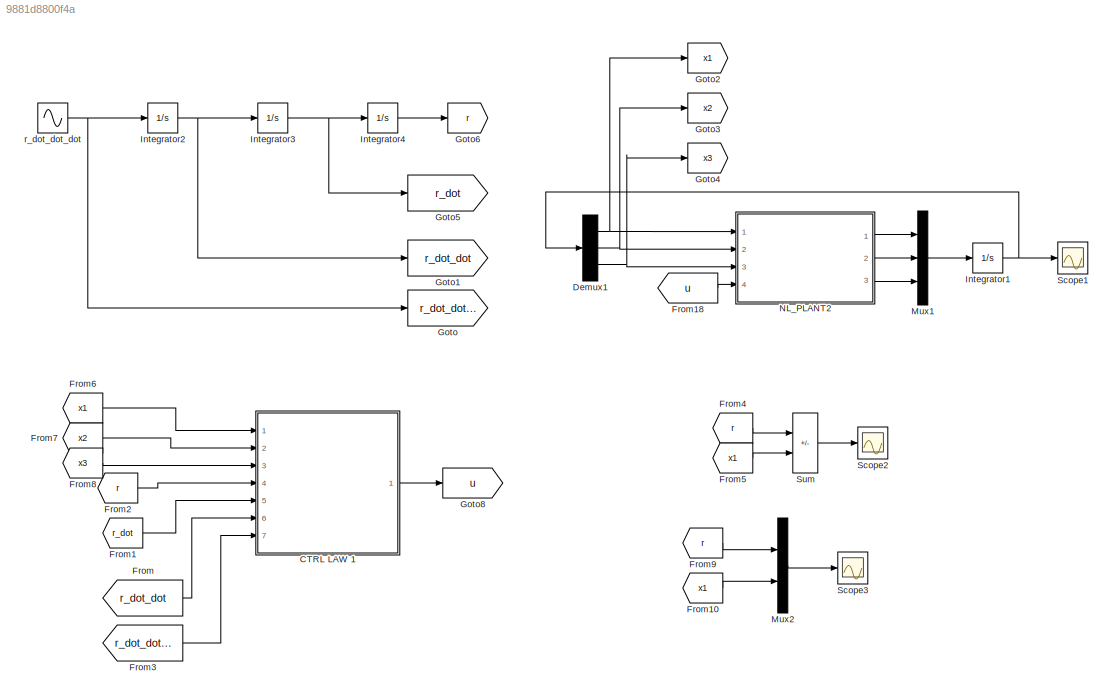
MODEL slx_9881d8800f4a
KIND model
CONFIG AbsTol = auto
CONFIG EnableMultiTasking = off
CONFIG FixedStep = 1e-5
CONFIG MaxStep = 1e-3
CONFIG MinStep = auto
CONFIG RelTol = 1e-5
CONFIG SampleTimeConstraint = Unconstrained
CONFIG SolverName = VariableStepAuto
CONFIG StartTime = 0.0
CONFIG StopTime = 10
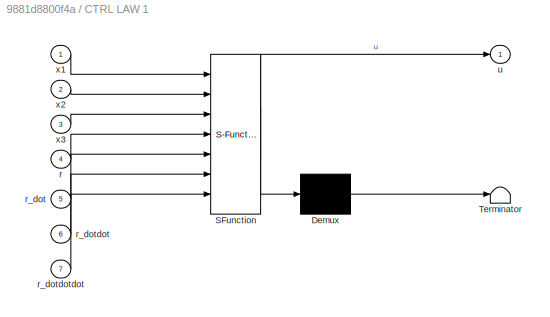
BLOCK [SubSystem] CTRL LAW 1
  ErrorFcn = Stateflow.Translate.translate
  PermitHierarchicalResolution = ExplicitOnly
  Ports = [7, 1]
  RequestExecContextInheritance = off
  SFBlockType = MATLAB Function
  TreatAsAtomicUnit = on
BLOCK [Demux] CTRL LAW 1/ Demux 
  Outputs = 1
  Ports = [1, 1]
BLOCK [S-Function] CTRL LAW 1/ SFunction 
  EnableBusSupport = on
  FunctionName = sf_sfun
  PortCounts = [7 2]
  Ports = [7, 2]
  SFcnIsStateOwnerBlock = off
  SFunctionDeploymentMode = off
  Tag = Stateflow S-Function 1
BLOCK [Terminator] CTRL LAW 1/ Terminator 
BLOCK [Inport] CTRL LAW 1/r
  Port = 4
BLOCK [Inport] CTRL LAW 1/r_dot
  Port = 5
BLOCK [Inport] CTRL LAW 1/r_dotdot
  Port = 6
BLOCK [Inport] CTRL LAW 1/r_dotdotdot
  Port = 7
BLOCK [Outport] CTRL LAW 1/u
BLOCK [Inport] CTRL LAW 1/x1
BLOCK [Inport] CTRL LAW 1/x2
  Port = 2
BLOCK [Inport] CTRL LAW 1/x3
  Port = 3
BLOCK [Demux] Demux1
  Outputs = 3
  Ports = [1, 3]
BLOCK [From] From
  GotoTag = r_dot_dot
BLOCK [From] From1
  GotoTag = r_dot
BLOCK [From] From10
  GotoTag = x1
BLOCK [From] From18
  GotoTag = u
BLOCK [From] From2
  GotoTag = r
BLOCK [From] From3
  GotoTag = r_dot_dot_dot
BLOCK [From] From4
  GotoTag = r
BLOCK [From] From5
  GotoTag = x1
BLOCK [From] From6
  GotoTag = x1
BLOCK [From] From7
  GotoTag = x2
BLOCK [From] From8
  GotoTag = x3
BLOCK [From] From9
  GotoTag = r
BLOCK [Goto] Goto
  GotoTag = r_dot_dot_dot
BLOCK [Goto] Goto1
  GotoTag = r_dot_dot
BLOCK [Goto] Goto2
  GotoTag = x1
BLOCK [Goto] Goto3
  GotoTag = x2
BLOCK [Goto] Goto4
  GotoTag = x3
BLOCK [Goto] Goto5
  GotoTag = r_dot
BLOCK [Goto] Goto6
  GotoTag = r
BLOCK [Goto] Goto8
  GotoTag = u
BLOCK [Integrator] Integrator1
  InitialCondition = ones(3,1)
  Ports = [1, 1]
BLOCK [Integrator] Integrator2
  Ports = [1, 1]
BLOCK [Integrator] Integrator3
  Ports = [1, 1]
BLOCK [Integrator] Integrator4
  Ports = [1, 1]
BLOCK [Mux] Mux1
  DisplayOption = bar
  Inputs = 3
  Ports = [3, 1]
BLOCK [Mux] Mux2
  DisplayOption = bar
  Inputs = 2
  Ports = [2, 1]
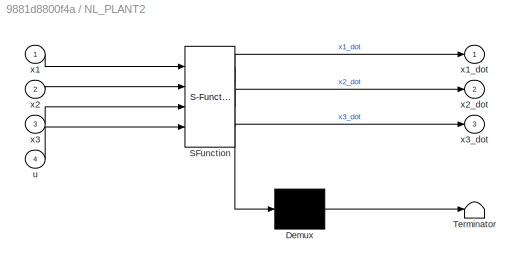
BLOCK [SubSystem] NL_PLANT2
  ErrorFcn = Stateflow.Translate.translate
  PermitHierarchicalResolution = ExplicitOnly
  Ports = [4, 3]
  RequestExecContextInheritance = off
  SFBlockType = MATLAB Function
  TreatAsAtomicUnit = on
BLOCK [Demux] NL_PLANT2/ Demux 
  Outputs = 1
  Ports = [1, 1]
BLOCK [S-Function] NL_PLANT2/ SFunction 
  EnableBusSupport = on
  FunctionName = sf_sfun
  PortCounts = [4 4]
  Ports = [4, 4]
  SFcnIsStateOwnerBlock = off
  SFunctionDeploymentMode = off
  Tag = Stateflow S-Function 3
BLOCK [Terminator] NL_PLANT2/ Terminator 
BLOCK [Inport] NL_PLANT2/u
  Port = 4
BLOCK [Inport] NL_PLANT2/x1
BLOCK [Outport] NL_PLANT2/x1_dot
BLOCK [Inport] NL_PLANT2/x2
  Port = 2
BLOCK [Outport] NL_PLANT2/x2_dot
  Port = 2
BLOCK [Inport] NL_PLANT2/x3
  Port = 3
BLOCK [Outport] NL_PLANT2/x3_dot
  Port = 3
BLOCK [Scope] Scope1
  Floating = off
  NumInputPorts = 1
  Ports = [1]
  ScopeSpecificationString = Simulink.scopes.TimeScopeBlockCfg('CurrentConfiguration', extmgr.ConfigurationSet(extmgr.Configuration('Core','General UI',true,'FigureColor',[1 1 1]),extmgr.Configuration('Core','Source UI',true),extmgr.Configuration('Sources','WiredSimulink',true,'DataLoggingVariableName','ScopeData1'),extmgr.Configuration('Visuals','Time Domain',true,'SerializedDisplays',{struct('MinYLimReal','-14.15971','MaxYL...<+2233ch>
BLOCK [Scope] Scope2
  Floating = off
  NumInputPorts = 1
  Ports = [1]
  ScopeSpecificationString = Simulink.scopes.TimeScopeBlockCfg('CurrentConfiguration', extmgr.ConfigurationSet(extmgr.Configuration('Core','General UI',true,'FigureColor',[1 1 1]),extmgr.Configuration('Core','Source UI',true),extmgr.Configuration('Sources','WiredSimulink',true,'DataLoggingVariableName','ScopeData1'),extmgr.Configuration('Visuals','Time Domain',true,'SerializedDisplays',{struct('MinYLimReal','-3.02805','MaxYLi...<+2187ch>
BLOCK [Scope] Scope3
  Floating = off
  NumInputPorts = 1
  Ports = [1]
  ScopeSpecificationString = Simulink.scopes.TimeScopeBlockCfg('CurrentConfiguration', extmgr.ConfigurationSet(extmgr.Configuration('Core','General UI',true,'FigureColor',[1 1 1]),extmgr.Configuration('Core','Source UI',true),extmgr.Configuration('Sources','WiredSimulink',true,'DataLoggingVariableName','ScopeData1'),extmgr.Configuration('Visuals','Time Domain',true,'SerializedDisplays',{struct('MinYLimReal','-0.33748','MaxYLi...<+2206ch>
BLOCK [Sum] Sum
  IconShape = rectangular
  Inputs = +-
  Ports = [2, 1]
BLOCK [Sin] r_dot_dot_dot
  Frequency = 2*pi*10
  Ports = [0, 1]
  SampleTime = 0
LINE CTRL LAW 1:1 -> Goto8:1
NET Demux1:1 -> Goto2:1, NL_PLANT2:1
NET Demux1:2 -> Goto3:1, NL_PLANT2:2
NET Demux1:3 -> Goto4:1, NL_PLANT2:3
LINE From10:1 -> Mux2:2
LINE From18:1 -> NL_PLANT2:4
LINE From1:1 -> CTRL LAW 1:5
LINE From2:1 -> CTRL LAW 1:4
LINE From3:1 -> CTRL LAW 1:7
LINE From4:1 -> Sum:1
LINE From5:1 -> Sum:2
LINE From6:1 -> CTRL LAW 1:1
LINE From7:1 -> CTRL LAW 1:2
LINE From8:1 -> CTRL LAW 1:3
LINE From9:1 -> Mux2:1
LINE From:1 -> CTRL LAW 1:6
NET Integrator1:1 -> Demux1:1, Scope1:1
NET Integrator2:1 -> Goto1:1, Integrator3:1
NET Integrator3:1 -> Goto5:1, Integrator4:1
LINE Integrator4:1 -> Goto6:1
LINE Mux1:1 -> Integrator1:1
LINE Mux2:1 -> Scope3:1
LINE NL_PLANT2:1 -> Mux1:1
LINE NL_PLANT2:2 -> Mux1:2
LINE NL_PLANT2:3 -> Mux1:3
LINE Sum:1 -> Scope2:1
NET r_dot_dot_dot:1 -> Goto:1, Integrator2:1
note: NET lines group one-source signal fan-out (src -> all destinations, sorted); 1:1 wires keep LINE
CHART CTRL LAW 1 states=1 transitions=1
  STATE_LABEL 'eML_blk_kernel()'
  STATE_LABEL 'SCRIPT:\nfunction u = uuu(x1,x2,x3,r,r_dot,r_dotdot,r_dotdotdot)\nu=3*r + 5*r_dot + 3*r_dotdot + r_dotdotdot ...\n    - 3*x1 - 5*x2 - 3*x3- 6*x1*x2 - 2*x1*x3 ...\n    - 5*x1^2 - 6*x1^3 - 2*x2^2 - 6*x1^4 - 8*x1^2*x2;\nend\n'
CHART NL_PLANT2 states=1 transitions=1
  STATE_LABEL 'eML_blk_kernel()'
  STATE_LABEL 'SCRIPT:\nfunction [x1_dot, x2_dot, x3_dot] = fcn(x1, x2, x3, u)\nx1_dot=(x1)^2+x2;\nx2_dot=x3;\nx3_dot=u;\nend\n'
CHART  states=0 transitions=0
CHART  states=0 transitions=0
